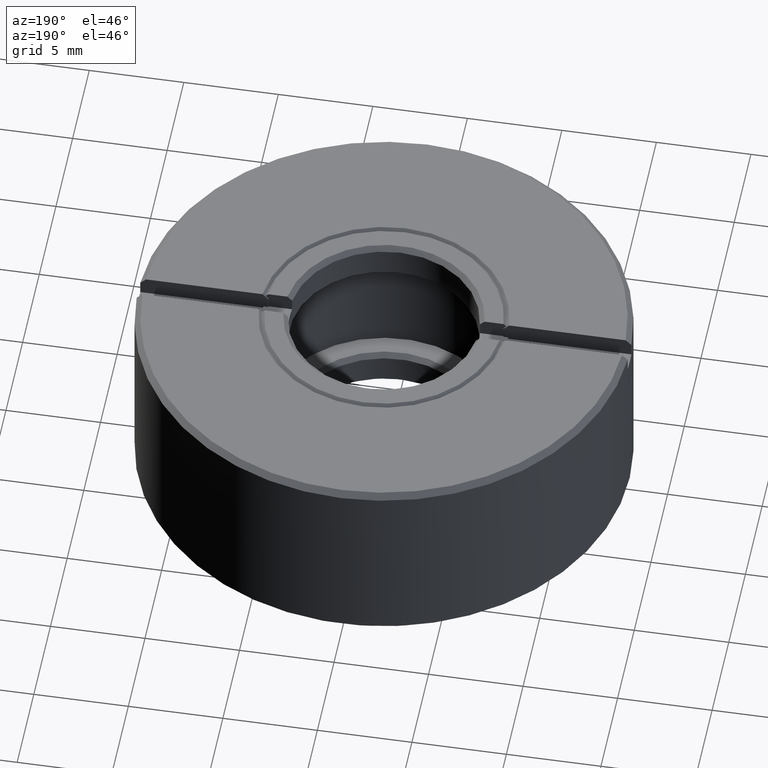
[diagram: clean part render]
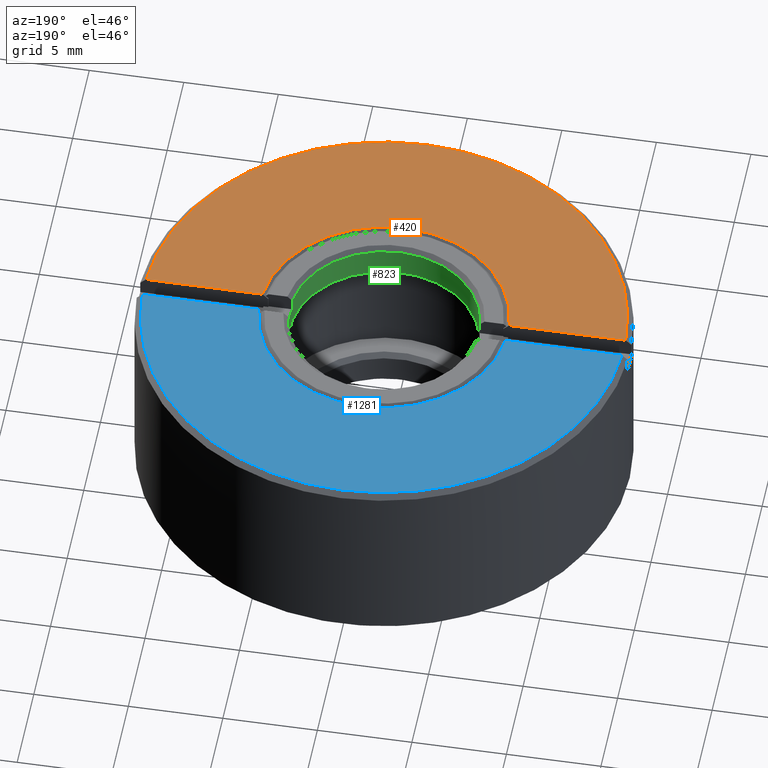
[diagram: same view with three faces highlighted in distinct colors, each labeled with its STEP entity id]
A machine part, auxiliary view with three faces highlighted in distinct colors.
Their STEP definitions:

[orange] entity #420 — the highlighted planar face has unit normal (0, 0, 1).
#75 = CARTESIAN_POINT ( 'NONE',  ( -12.68808496188450441, -0.5500000000000000444, 5.000000000000002665 ) ) ;
#122 = DIRECTION ( 'NONE',  ( -0.000000000000000000, 0.000000000000000000, -1.000000000000000000 ) ) ;
#132 = CARTESIAN_POINT ( 'NONE',  ( 0.000000000000000000, -0.5500000000000000444, 5.000000000000000000 ) ) ;
#149 = ORIENTED_EDGE ( 'NONE', *, *, #943, .F. ) ;
#155 = VECTOR ( 'NONE', #1201, 1000.000000000000000 ) ;
#159 = VERTEX_POINT ( 'NONE', #1551 ) ;
#211 = CIRCLE ( 'NONE', #1239, 6.550000000004274625 ) ;
#221 = FACE_OUTER_BOUND ( 'NONE', #1580, .T. ) ;
#249 = ORIENTED_EDGE ( 'NONE', *, *, #306, .T. ) ;
#306 = EDGE_CURVE ( 'NONE', #1258, #1093, #501, .T. ) ;
#351 = CARTESIAN_POINT ( 'NONE',  ( 6.526867548830913357, -0.5500000000000000444, 5.000000000046651571 ) ) ;
#420 = ADVANCED_FACE ( 'NONE', ( #221 ), #691, .T. ) ;
#434 = CARTESIAN_POINT ( 'NONE',  ( 0.000000000000000000, -0.5500000000000000444, 5.000000000000000000 ) ) ;
#441 = DIRECTION ( 'NONE',  ( -1.000000000000000000, -0.000000000000000000, 0.000000000000000000 ) ) ;
#488 = VERTEX_POINT ( 'NONE', #351 ) ;
#501 = LINE ( 'NONE', #132, #155 ) ;
#503 = VECTOR ( 'NONE', #441, 1000.000000000000000 ) ;
#520 = CIRCLE ( 'NONE', #1432, 12.69999999999998863 ) ;
#529 = EDGE_CURVE ( 'NONE', #488, #1258, #211, .T. ) ;
#619 = CARTESIAN_POINT ( 'NONE',  ( 0.000000000000000000, 0.000000000000000000, 5.000000000052295945 ) ) ;
#691 = PLANE ( 'NONE',  #1401 ) ;
#714 = LINE ( 'NONE', #434, #503 ) ;
#863 = CARTESIAN_POINT ( 'NONE',  ( -6.526867548810337816, -0.5500000000000000444, 5.000000000026148861 ) ) ;
#923 = DIRECTION ( 'NONE',  ( 0.000000000000000000, 0.000000000000000000, 1.000000000000000000 ) ) ;
#929 = DIRECTION ( 'NONE',  ( 1.000000000000000000, 0.000000000000000000, -0.000000000000000000 ) ) ;
#943 = EDGE_CURVE ( 'NONE', #159, #1093, #520, .T. ) ;
#1026 = ORIENTED_EDGE ( 'NONE', *, *, #529, .T. ) ;
#1093 = VERTEX_POINT ( 'NONE', #75 ) ;
#1141 = DIRECTION ( 'NONE',  ( -1.000000000000000000, 0.000000000000000000, 0.000000000000000000 ) ) ;
#1201 = DIRECTION ( 'NONE',  ( -1.000000000000000000, -0.000000000000000000, 0.000000000000000000 ) ) ;
#1239 = AXIS2_PLACEMENT_3D ( 'NONE', #619, #122, #1600 ) ;
#1250 = DIRECTION ( 'NONE',  ( 0.000000000000000000, 0.000000000000000000, -1.000000000000000000 ) ) ;
#1258 = VERTEX_POINT ( 'NONE', #863 ) ;
#1268 = CARTESIAN_POINT ( 'NONE',  ( 0.000000000000000000, 0.000000000000000000, 5.000000000000001776 ) ) ;
#1311 = ORIENTED_EDGE ( 'NONE', *, *, #1525, .T. ) ;
#1401 = AXIS2_PLACEMENT_3D ( 'NONE', #1549, #923, #929 ) ;
#1432 = AXIS2_PLACEMENT_3D ( 'NONE', #1268, #1250, #1141 ) ;
#1525 = EDGE_CURVE ( 'NONE', #159, #488, #714, .T. ) ;
#1549 = CARTESIAN_POINT ( 'NONE',  ( 0.000000000000000000, 0.000000000000000000, 5.000000000000000000 ) ) ;
#1551 = CARTESIAN_POINT ( 'NONE',  ( 12.68808496188450441, -0.5500000000000000444, 5.000000000000001776 ) ) ;
#1580 = EDGE_LOOP ( 'NONE', ( #1311, #1026, #249, #149 ) ) ;
#1600 = DIRECTION ( 'NONE',  ( 1.000000000000000000, 0.000000000000000000, 0.000000000000000000 ) ) ;

[blue] entity #1281 — the highlighted planar face has unit normal (0, 0, 1).
#20 = VERTEX_POINT ( 'NONE', #1526 ) ;
#29 = CIRCLE ( 'NONE', #1213, 12.69999999999998863 ) ;
#67 = DIRECTION ( 'NONE',  ( 0.000000000000000000, 0.000000000000000000, -1.000000000000000000 ) ) ;
#108 = VECTOR ( 'NONE', #710, 1000.000000000000000 ) ;
#116 = LINE ( 'NONE', #614, #935 ) ;
#129 = CARTESIAN_POINT ( 'NONE',  ( 0.000000000000000000, 0.000000000000000000, 5.000000000000000000 ) ) ;
#162 = CIRCLE ( 'NONE', #553, 6.550000000004274625 ) ;
#164 = CARTESIAN_POINT ( 'NONE',  ( 0.000000000000000000, 0.000000000000000000, 5.000000000052295945 ) ) ;
#229 = PLANE ( 'NONE',  #421 ) ;
#340 = CARTESIAN_POINT ( 'NONE',  ( -12.68808496188450441, 0.5500000000000000444, 5.000000000000001776 ) ) ;
#372 = ORIENTED_EDGE ( 'NONE', *, *, #1110, .T. ) ;
#373 = EDGE_LOOP ( 'NONE', ( #372, #1203, #1016, #1246 ) ) ;
#421 = AXIS2_PLACEMENT_3D ( 'NONE', #129, #743, #1226 ) ;
#439 = VERTEX_POINT ( 'NONE', #443 ) ;
#443 = CARTESIAN_POINT ( 'NONE',  ( -6.526867548830913357, 0.5500000000000000444, 5.000000000046651571 ) ) ;
#480 = DIRECTION ( 'NONE',  ( -1.000000000000000000, 0.000000000000000000, 0.000000000000000000 ) ) ;
#528 = CARTESIAN_POINT ( 'NONE',  ( 6.526867548810337816, 0.5500000000000000444, 5.000000000026148861 ) ) ;
#553 = AXIS2_PLACEMENT_3D ( 'NONE', #164, #1031, #1540 ) ;
#614 = CARTESIAN_POINT ( 'NONE',  ( 0.000000000000000000, 0.5500000000000000444, 5.000000000000000000 ) ) ;
#710 = DIRECTION ( 'NONE',  ( 1.000000000000000000, 0.000000000000000000, -0.000000000000000000 ) ) ;
#743 = DIRECTION ( 'NONE',  ( 0.000000000000000000, 0.000000000000000000, 1.000000000000000000 ) ) ;
#935 = VECTOR ( 'NONE', #981, 1000.000000000000000 ) ;
#949 = CARTESIAN_POINT ( 'NONE',  ( 0.000000000000000000, 0.5500000000000000444, 5.000000000000000000 ) ) ;
#981 = DIRECTION ( 'NONE',  ( 1.000000000000000000, 0.000000000000000000, -0.000000000000000000 ) ) ;
#1016 = ORIENTED_EDGE ( 'NONE', *, *, #1223, .T. ) ;
#1031 = DIRECTION ( 'NONE',  ( -0.000000000000000000, 0.000000000000000000, -1.000000000000000000 ) ) ;
#1070 = EDGE_CURVE ( 'NONE', #1572, #20, #29, .T. ) ;
#1110 = EDGE_CURVE ( 'NONE', #1572, #439, #1584, .T. ) ;
#1203 = ORIENTED_EDGE ( 'NONE', *, *, #1486, .T. ) ;
#1213 = AXIS2_PLACEMENT_3D ( 'NONE', #1542, #67, #480 ) ;
#1223 = EDGE_CURVE ( 'NONE', #1420, #20, #116, .T. ) ;
#1226 = DIRECTION ( 'NONE',  ( 1.000000000000000000, 0.000000000000000000, -0.000000000000000000 ) ) ;
#1246 = ORIENTED_EDGE ( 'NONE', *, *, #1070, .F. ) ;
#1281 = ADVANCED_FACE ( 'NONE', ( #1336 ), #229, .T. ) ;
#1336 = FACE_OUTER_BOUND ( 'NONE', #373, .T. ) ;
#1420 = VERTEX_POINT ( 'NONE', #528 ) ;
#1486 = EDGE_CURVE ( 'NONE', #439, #1420, #162, .T. ) ;
#1526 = CARTESIAN_POINT ( 'NONE',  ( 12.68808496188450441, 0.5500000000000000444, 5.000000000000002665 ) ) ;
#1540 = DIRECTION ( 'NONE',  ( 1.000000000000000000, 0.000000000000000000, 0.000000000000000000 ) ) ;
#1542 = CARTESIAN_POINT ( 'NONE',  ( 0.000000000000000000, 0.000000000000000000, 5.000000000000001776 ) ) ;
#1572 = VERTEX_POINT ( 'NONE', #340 ) ;
#1584 = LINE ( 'NONE', #949, #108 ) ;

[green] entity #823 — the highlighted cylindrical surface (bore or boss wall) has radius 5 mm, axis along (0, 0, 1).
#7 = AXIS2_PLACEMENT_3D ( 'NONE', #816, #1287, #465 ) ;
#17 = LINE ( 'NONE', #1010, #858 ) ;
#64 = DIRECTION ( 'NONE',  ( 1.000000000000000000, 6.217248937900877415E-15, 0.000000000000000000 ) ) ;
#88 = CARTESIAN_POINT ( 'NONE',  ( 0.000000000000000000, 0.000000000000000000, 4.099999999999999645 ) ) ;
#105 = AXIS2_PLACEMENT_3D ( 'NONE', #1218, #479, #973 ) ;
#148 = DIRECTION ( 'NONE',  ( -0.000000000000000000, -0.000000000000000000, -1.000000000000000000 ) ) ;
#167 = ORIENTED_EDGE ( 'NONE', *, *, #886, .F. ) ;
#200 = DIRECTION ( 'NONE',  ( -0.000000000000000000, -0.000000000000000000, -1.000000000000000000 ) ) ;
#236 = AXIS2_PLACEMENT_3D ( 'NONE', #892, #148, #916 ) ;
#245 = CARTESIAN_POINT ( 'NONE',  ( -4.963869458390858469, -0.5999999999999998668, 4.750000000001277201 ) ) ;
#272 = ORIENTED_EDGE ( 'NONE', *, *, #593, .T. ) ;
#322 = CYLINDRICAL_SURFACE ( 'NONE', #7, 4.999999999999997335 ) ;
#342 = AXIS2_PLACEMENT_3D ( 'NONE', #749, #1499, #996 ) ;
#352 = CARTESIAN_POINT ( 'NONE',  ( -4.963869458393332934, 0.6000000000000000888, 4.100000000000000533 ) ) ;
#355 = VERTEX_POINT ( 'NONE', #452 ) ;
#397 = DIRECTION ( 'NONE',  ( -0.000000000000000000, 0.000000000000000000, 1.000000000000000000 ) ) ;
#418 = CIRCLE ( 'NONE', #932, 4.999999999999997335 ) ;
#426 = LINE ( 'NONE', #1382, #836 ) ;
#452 = CARTESIAN_POINT ( 'NONE',  ( 4.963869458390858469, 0.6000000000000000888, 4.750000000001277201 ) ) ;
#458 = FACE_OUTER_BOUND ( 'NONE', #1038, .T. ) ;
#465 = DIRECTION ( 'NONE',  ( 1.000000000000000000, 0.000000000000000000, 0.000000000000000000 ) ) ;
#468 = CARTESIAN_POINT ( 'NONE',  ( 4.963869458394836620, -0.5999999999999998668, 4.750000000003734790 ) ) ;
#470 = VERTEX_POINT ( 'NONE', #245 ) ;
#479 = DIRECTION ( 'NONE',  ( -0.000000000000000000, -0.000000000000000000, -1.000000000000000000 ) ) ;
#492 = CARTESIAN_POINT ( 'NONE',  ( 0.000000000000000000, 0.000000000000000000, 4.099999999999999645 ) ) ;
#493 = EDGE_CURVE ( 'NONE', #1121, #470, #652, .T. ) ;
#593 = EDGE_CURVE ( 'NONE', #1053, #1053, #1537, .T. ) ;
#596 = CARTESIAN_POINT ( 'NONE',  ( 4.963869458393332934, 0.6000000000000000888, 4.100000000000000533 ) ) ;
#609 = VERTEX_POINT ( 'NONE', #724 ) ;
#634 = VERTEX_POINT ( 'NONE', #1129 ) ;
#652 = CIRCLE ( 'NONE', #342, 4.999999999999997335 ) ;
#657 = EDGE_CURVE ( 'NONE', #609, #470, #17, .T. ) ;
#695 = ORIENTED_EDGE ( 'NONE', *, *, #1391, .T. ) ;
#717 = DIRECTION ( 'NONE',  ( 0.000000000000000000, -0.000000000000000000, 1.000000000000000000 ) ) ;
#722 = ORIENTED_EDGE ( 'NONE', *, *, #952, .F. ) ;
#724 = CARTESIAN_POINT ( 'NONE',  ( -4.963869458394836620, -0.5999999999999998668, 4.099999999999999645 ) ) ;
#730 = CIRCLE ( 'NONE', #236, 4.999999999999997335 ) ;
#736 = DIRECTION ( 'NONE',  ( -0.000000000000000000, -0.000000000000000000, -1.000000000000000000 ) ) ;
#749 = CARTESIAN_POINT ( 'NONE',  ( 0.000000000000000000, 0.000000000000000000, 4.749999999999998224 ) ) ;
#750 = LINE ( 'NONE', #352, #1137 ) ;
#790 = ORIENTED_EDGE ( 'NONE', *, *, #1215, .F. ) ;
#816 = CARTESIAN_POINT ( 'NONE',  ( 0.000000000000000000, 0.000000000000000000, 3.000000000000000000 ) ) ;
#823 = ADVANCED_FACE ( 'NONE', ( #458, #1448 ), #322, .F. ) ;
#836 = VECTOR ( 'NONE', #1531, 1000.000000000000000 ) ;
#856 = ORIENTED_EDGE ( 'NONE', *, *, #1073, .T. ) ;
#858 = VECTOR ( 'NONE', #397, 1000.000000000000000 ) ;
#886 = EDGE_CURVE ( 'NONE', #609, #634, #418, .T. ) ;
#892 = CARTESIAN_POINT ( 'NONE',  ( 0.000000000000000000, 0.000000000000000000, 4.749999999999998224 ) ) ;
#916 = DIRECTION ( 'NONE',  ( 1.000000000000000000, 0.000000000000000000, 0.000000000000000000 ) ) ;
#928 = CARTESIAN_POINT ( 'NONE',  ( -4.963869458394836620, 0.6000000000000000888, 4.750000000003734790 ) ) ;
#932 = AXIS2_PLACEMENT_3D ( 'NONE', #88, #200, #64 ) ;
#952 = EDGE_CURVE ( 'NONE', #1579, #355, #730, .T. ) ;
#973 = DIRECTION ( 'NONE',  ( -1.000000000000000000, 0.000000000000000000, 0.000000000000000000 ) ) ;
#974 = DIRECTION ( 'NONE',  ( -0.000000000000000000, 0.000000000000000000, -1.000000000000000000 ) ) ;
#996 = DIRECTION ( 'NONE',  ( 1.000000000000000000, 0.000000000000000000, 0.000000000000000000 ) ) ;
#1010 = CARTESIAN_POINT ( 'NONE',  ( -4.963869458393332934, -0.5999999999999998668, 4.100000000000000533 ) ) ;
#1038 = EDGE_LOOP ( 'NONE', ( #790, #856, #722, #1278, #167, #1361, #1236, #695 ) ) ;
#1053 = VERTEX_POINT ( 'NONE', #1565 ) ;
#1073 = EDGE_CURVE ( 'NONE', #1305, #355, #1459, .T. ) ;
#1119 = CARTESIAN_POINT ( 'NONE',  ( 4.963869458394836620, 0.6000000000000000888, 4.099999999999999645 ) ) ;
#1121 = VERTEX_POINT ( 'NONE', #468 ) ;
#1129 = CARTESIAN_POINT ( 'NONE',  ( -4.963869458394836620, 0.6000000000000000888, 4.099999999999999645 ) ) ;
#1137 = VECTOR ( 'NONE', #974, 1000.000000000000000 ) ;
#1206 = DIRECTION ( 'NONE',  ( 1.000000000000000000, 0.000000000000000000, 0.000000000000000000 ) ) ;
#1215 = EDGE_CURVE ( 'NONE', #1305, #1216, #1568, .T. ) ;
#1216 = VERTEX_POINT ( 'NONE', #1366 ) ;
#1218 = CARTESIAN_POINT ( 'NONE',  ( 0.000000000000000000, 0.000000000000000000, 3.249999999984538590 ) ) ;
#1236 = ORIENTED_EDGE ( 'NONE', *, *, #493, .F. ) ;
#1241 = VECTOR ( 'NONE', #717, 1000.000000000000000 ) ;
#1262 = EDGE_CURVE ( 'NONE', #1579, #634, #750, .T. ) ;
#1278 = ORIENTED_EDGE ( 'NONE', *, *, #1262, .T. ) ;
#1287 = DIRECTION ( 'NONE',  ( 0.000000000000000000, 0.000000000000000000, 1.000000000000000000 ) ) ;
#1305 = VERTEX_POINT ( 'NONE', #1119 ) ;
#1361 = ORIENTED_EDGE ( 'NONE', *, *, #657, .T. ) ;
#1366 = CARTESIAN_POINT ( 'NONE',  ( 4.963869458394836620, -0.5999999999999998668, 4.099999999999999645 ) ) ;
#1382 = CARTESIAN_POINT ( 'NONE',  ( 4.963869458393332934, -0.5999999999999998668, 4.100000000000000533 ) ) ;
#1391 = EDGE_CURVE ( 'NONE', #1121, #1216, #426, .T. ) ;
#1448 = FACE_OUTER_BOUND ( 'NONE', #1497, .T. ) ;
#1459 = LINE ( 'NONE', #596, #1241 ) ;
#1463 = AXIS2_PLACEMENT_3D ( 'NONE', #492, #736, #1206 ) ;
#1497 = EDGE_LOOP ( 'NONE', ( #272 ) ) ;
#1499 = DIRECTION ( 'NONE',  ( -0.000000000000000000, -0.000000000000000000, -1.000000000000000000 ) ) ;
#1531 = DIRECTION ( 'NONE',  ( 0.000000000000000000, -0.000000000000000000, -1.000000000000000000 ) ) ;
#1537 = CIRCLE ( 'NONE', #105, 4.999999999995452526 ) ;
#1565 = CARTESIAN_POINT ( 'NONE',  ( -4.999999999995452526, 0.000000000000000000, 3.249999999984538590 ) ) ;
#1568 = CIRCLE ( 'NONE', #1463, 4.999999999999997335 ) ;
#1579 = VERTEX_POINT ( 'NONE', #928 ) ;